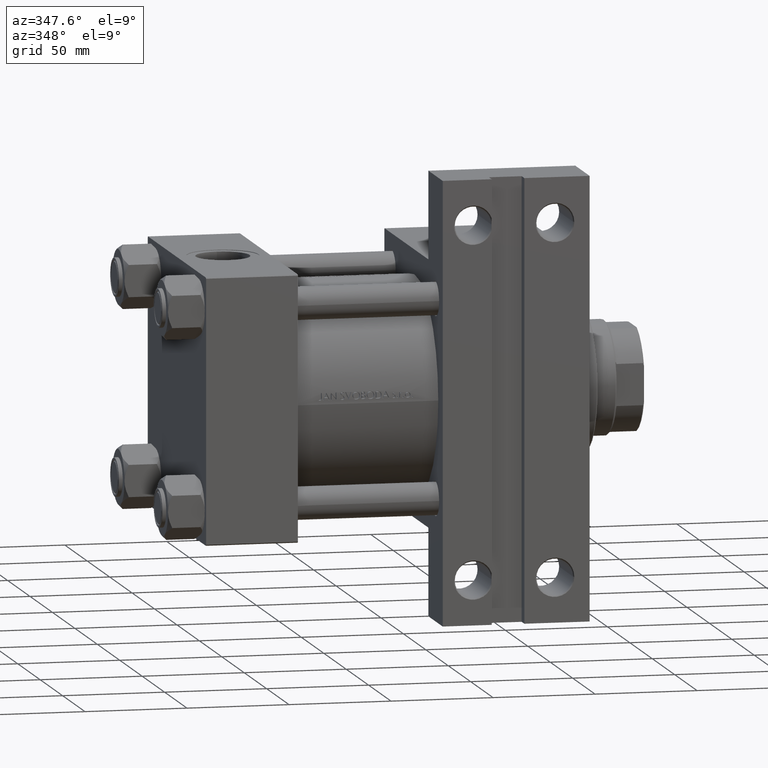
[diagram: clean part render]
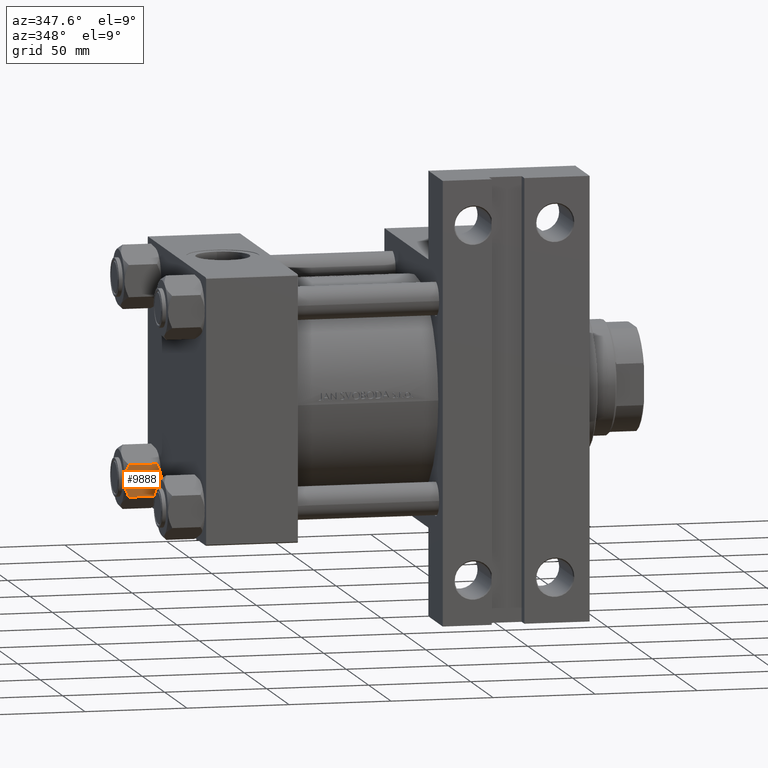
[diagram: same view with one face highlighted and labeled with its STEP entity id]
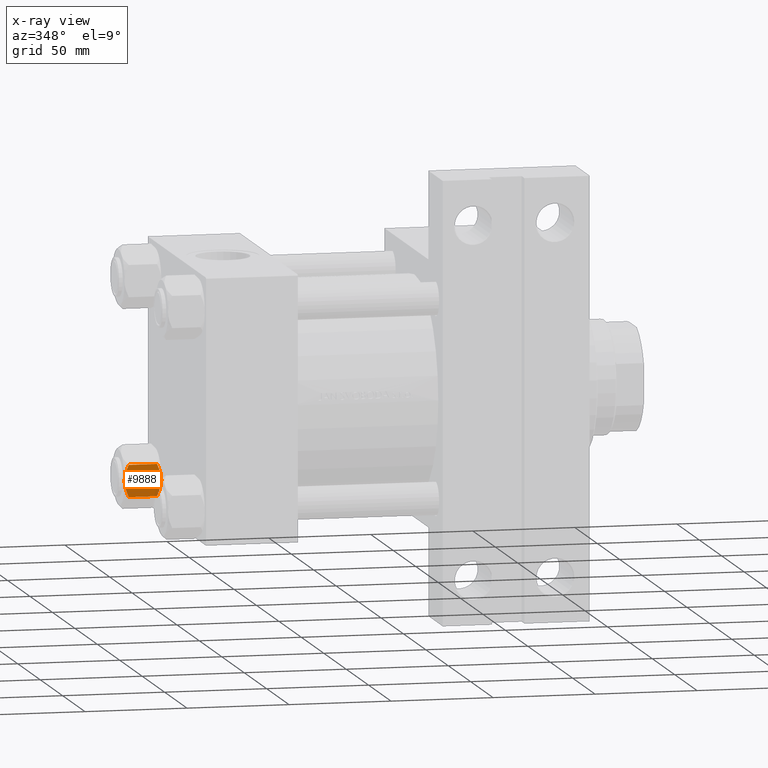
[diagram: x-ray of the same camera — body ghosted, the highlighted face saturated]
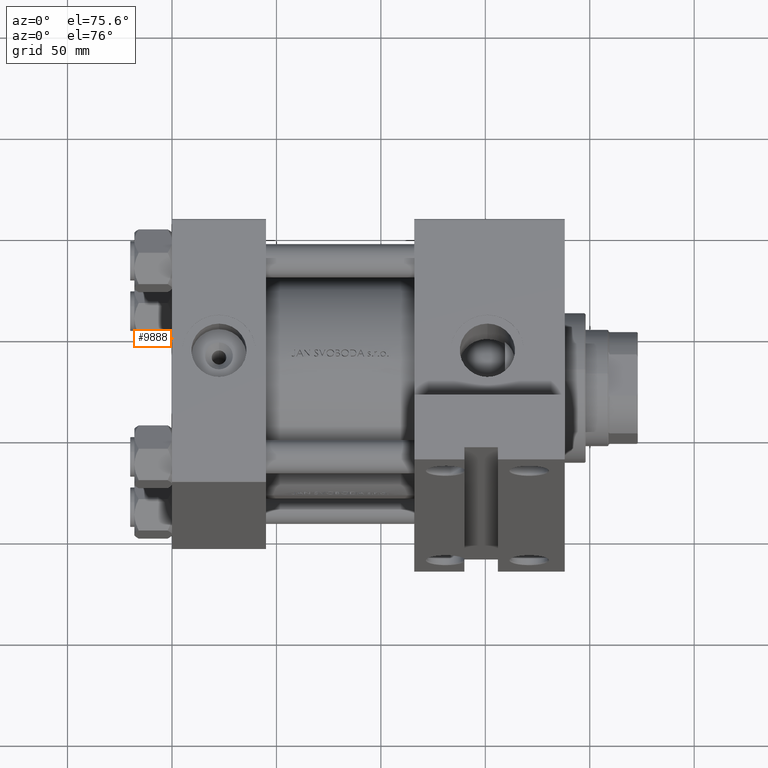
[diagram: same view with one face highlighted and labeled with its STEP entity id]
A machine part, auxiliary view. The second image highlights one B-rep face of the part: STEP entity #9888.
The next image is the same camera in x-ray: the body ghosted, the highlighted face saturated — about 5% of this face is hidden behind the body in this view.
A second angle (auxiliary view) of the same face is appended — the face is thin or edge-on in the first view.
In plain terms, the highlighted planar face has unit normal (0, 1, -0).
Its self-contained STEP definition (entity closure, byte-faithful):
#417 = CARTESIAN_POINT ( 'NONE',  ( -4.557734399832409800, -13.52731680711293905, -17.26585298258849122 ) ) ;
#431 = VERTEX_POINT ( 'NONE', #20431 ) ;
#464 = CARTESIAN_POINT ( 'NONE',  ( 1.663410456966175843, -13.52731680711293372, -0.09804949135698878826 ) ) ;
#612 = CARTESIAN_POINT ( 'NONE',  ( -7.809999999999999609, -13.52731680711293727, -1.999999999999998224 ) ) ;
#851 = FACE_OUTER_BOUND ( 'NONE', #21378, .T. ) ;
#3019 = CARTESIAN_POINT ( 'NONE',  ( -7.622943475354647447, -13.52731680711293727, -2.000000000000000000 ) ) ;
#3577 = LINE ( 'NONE', #18983, #6570 ) ;
#3952 = DIRECTION ( 'NONE',  ( 1.000000000000000000, 2.221156819432531199E-16, -0.000000000000000000 ) ) ;
#4744 = VERTEX_POINT ( 'NONE', #48546 ) ;
#4783 = ORIENTED_EDGE ( 'NONE', *, *, #12728, .F. ) ;
#5666 = CARTESIAN_POINT ( 'NONE',  ( 3.287826776903156833, -13.52731680711293194, -0.3804584453753362960 ) ) ;
#6570 = VECTOR ( 'NONE', #30086, 1000.000000000000000 ) ;
#6712 = EDGE_CURVE ( 'NONE', #24301, #46433, #40684, .T. ) ;
#7182 = VERTEX_POINT ( 'NONE', #612 ) ;
#7419 = VECTOR ( 'NONE', #32786, 1000.000000000000000 ) ;
#8318 = CARTESIAN_POINT ( 'NONE',  ( 5.184073258379408244, -13.52731680711293372, -0.9481437906500832513 ) ) ;
#8511 = CARTESIAN_POINT ( 'NONE',  ( -6.422751913021825132, -13.52731680711293905, -16.56349088907410305 ) ) ;
#9184 = CARTESIAN_POINT ( 'NONE',  ( 7.810000000000002274, -13.52731680711293372, -18.00000000000000000 ) ) ;
#9418 = CARTESIAN_POINT ( 'NONE',  ( 7.622943475354652776, -13.52731680711293372, -2.000000000000000000 ) ) ;
#9660 = B_SPLINE_CURVE_WITH_KNOTS ( 'NONE', 3,
 ( #3019, #40928, #14899, #10616, #17675, #30296, #49260, #10870 ),
 .UNSPECIFIED., .F., .F.,
 ( 4, 2, 2, 4 ),
 ( 0.01980594295952729095, 0.02179054093496183425, 0.02377513891039637756, 0.02774433486126546416 ),
 .UNSPECIFIED. ) ;
#9888 = ADVANCED_FACE ( 'NONE', ( #851 ), #31653, .F. ) ;
#10516 = CARTESIAN_POINT ( 'NONE',  ( -7.622943475354647447, -13.52731680711293727, -16.00000000000000000 ) ) ;
#10616 = CARTESIAN_POINT ( 'NONE',  ( -5.189513245496330640, -13.52731680711293905, -0.9501108431732574466 ) ) ;
#10765 = EDGE_CURVE ( 'NONE', #7182, #29683, #19616, .T. ) ;
#10809 = EDGE_CURVE ( 'NONE', #4744, #7182, #23654, .T. ) ;
#10870 = CARTESIAN_POINT ( 'NONE',  ( 3.004629197474319246E-15, -13.52731680711293727, 0.000000000000000000 ) ) ;
#11797 = CARTESIAN_POINT ( 'NONE',  ( -7.809999999999999609, -13.52731680711293727, -18.00000000000000000 ) ) ;
#12039 = AXIS2_PLACEMENT_3D ( 'NONE', #9184, #43778, #21026 ) ;
#12583 = CARTESIAN_POINT ( 'NONE',  ( 0.6693083573771232420, -13.52731680711293372, -0.01249333081107902900 ) ) ;
#12728 = EDGE_CURVE ( 'NONE', #37979, #46132, #24318, .T. ) ;
#12876 = CARTESIAN_POINT ( 'NONE',  ( 7.810000000000002274, -13.52731680711293372, -16.00000000000000000 ) ) ;
#12939 = ORIENTED_EDGE ( 'NONE', *, *, #31015, .F. ) ;
#13487 = CARTESIAN_POINT ( 'NONE',  ( 7.030203932307590442, -13.52731680711293727, -1.709001877891394017 ) ) ;
#13866 = VERTEX_POINT ( 'NONE', #15011 ) ;
#14844 = CARTESIAN_POINT ( 'NONE',  ( -7.622943475354647447, -13.52731680711293727, -2.000000000000000000 ) ) ;
#14899 = CARTESIAN_POINT ( 'NONE',  ( -6.427364677720470709, -13.52731680711293727, -1.438506937155139109 ) ) ;
#15011 = CARTESIAN_POINT ( 'NONE',  ( 3.004629197474319246E-15, -13.52731680711293727, 0.000000000000000000 ) ) ;
#15076 = CARTESIAN_POINT ( 'NONE',  ( 7.030888348548065103, -13.52731680711293194, -16.29066211644969897 ) ) ;
#15321 = CARTESIAN_POINT ( 'NONE',  ( 2.638177715023113379, -13.52731680711293549, -17.79984593233011481 ) ) ;
#15465 = EDGE_CURVE ( 'NONE', #29683, #13866, #9660, .T. ) ;
#17675 = CARTESIAN_POINT ( 'NONE',  ( -4.553769687922305742, -13.52731680711294082, -0.7327291995145158721 ) ) ;
#18983 = CARTESIAN_POINT ( 'NONE',  ( 7.810000000000002274, -13.52731680711293372, -16.00000000000000000 ) ) ;
#19616 = LINE ( 'NONE', #35015, #22563 ) ;
#19621 = CARTESIAN_POINT ( 'NONE',  ( -0.3330234424833808937, -13.52731680711293372, -18.00000000000000711 ) ) ;
#19886 = B_SPLINE_CURVE_WITH_KNOTS ( 'NONE', 3,
 ( #45898, #15076, #30471, #34504, #49933, #15321, #30721, #23150 ),
 .UNSPECIFIED., .F., .F.,
 ( 4, 2, 2, 4 ),
 ( 0.01980594295952729095, 0.02179054093496183078, 0.02377513891039637062, 0.02774433486126545376 ),
 .UNSPECIFIED. ) ;
#20431 = CARTESIAN_POINT ( 'NONE',  ( 7.810000000000002274, -13.52731680711293372, -1.999999999999998224 ) ) ;
#21026 = DIRECTION ( 'NONE',  ( -1.000000000000000000, -2.221156819432531199E-16, 0.000000000000000000 ) ) ;
#21378 = EDGE_LOOP ( 'NONE', ( #4783, #27936, #43644, #39173, #43732, #47233, #48969, #42196, #25296, #12939 ) ) ;
#22442 = EDGE_CURVE ( 'NONE', #46433, #4744, #3577, .T. ) ;
#22563 = VECTOR ( 'NONE', #3952, 1000.000000000000000 ) ;
#23150 = CARTESIAN_POINT ( 'NONE',  ( 3.004629197474319246E-15, -13.52731680711293727, -18.00000000000000000 ) ) ;
#23654 = LINE ( 'NONE', #11797, #32197 ) ;
#23659 = CARTESIAN_POINT ( 'NONE',  ( 3.004629197474319246E-15, -13.52731680711293727, -18.00000000000000000 ) ) ;
#23899 = CARTESIAN_POINT ( 'NONE',  ( -7.030203932307581560, -13.52731680711293727, -16.29099812210860065 ) ) ;
#24301 = VERTEX_POINT ( 'NONE', #48560 ) ;
#24318 = LINE ( 'NONE', #39736, #41193 ) ;
#24529 = LINE ( 'NONE', #33076, #37259 ) ;
#25296 = ORIENTED_EDGE ( 'NONE', *, *, #6712, .F. ) ;
#27433 = CARTESIAN_POINT ( 'NONE',  ( -2.644243758052987836, -13.52731680711293549, -17.75917188019760218 ) ) ;
#27484 = CARTESIAN_POINT ( 'NONE',  ( 6.422751913021828685, -13.52731680711293549, -1.436509110925896948 ) ) ;
#27647 = B_SPLINE_CURVE_WITH_KNOTS ( 'NONE', 3,
 ( #46201, #31020, #12583, #40534, #464, #35066, #5666, #35305, #8318, #27484, #13487, #42904 ),
 .UNSPECIFIED., .F., .F.,
 ( 4, 2, 2, 2, 2, 4 ),
 ( 0.02774433486126546416, 0.02873404020403550266, 0.02972374554680554115, 0.03170315623234561814, 0.03368256691788569512, 0.03566197760342577211 ),
 .UNSPECIFIED. ) ;
#27691 = CARTESIAN_POINT ( 'NONE',  ( -3.287826776903149728, -13.52731680711293727, -17.61954155462466076 ) ) ;
#27936 = ORIENTED_EDGE ( 'NONE', *, *, #28471, .T. ) ;
#28304 = DIRECTION ( 'NONE',  ( -0.000000000000000000, -0.000000000000000000, 1.000000000000000000 ) ) ;
#28471 = EDGE_CURVE ( 'NONE', #37979, #431, #24529, .T. ) ;
#29001 = CARTESIAN_POINT ( 'NONE',  ( 7.810000000000002274, -13.52731680711293372, -1.999999999999998224 ) ) ;
#29683 = VERTEX_POINT ( 'NONE', #14844 ) ;
#30086 = DIRECTION ( 'NONE',  ( -1.000000000000000000, -2.221156819432531199E-16, 0.000000000000000000 ) ) ;
#30296 = CARTESIAN_POINT ( 'NONE',  ( -2.638177715023105385, -13.52731680711294082, -0.2001540676698838062 ) ) ;
#30471 = CARTESIAN_POINT ( 'NONE',  ( 6.427364677720476926, -13.52731680711293549, -16.56149306284486755 ) ) ;
#30721 = CARTESIAN_POINT ( 'NONE',  ( 1.335584685993418619, -13.52731680711293372, -18.00000000000000355 ) ) ;
#31015 = EDGE_CURVE ( 'NONE', #46132, #24301, #19886, .T. ) ;
#31020 = CARTESIAN_POINT ( 'NONE',  ( 0.3330234424833860007, -13.52731680711293727, 1.736982230502816853E-15 ) ) ;
#31474 = CARTESIAN_POINT ( 'NONE',  ( -7.622943475354647447, -13.52731680711293727, -16.00000000000000000 ) ) ;
#31653 = PLANE ( 'NONE',  #12039 ) ;
#32197 = VECTOR ( 'NONE', #49927, 1000.000000000000000 ) ;
#32786 = DIRECTION ( 'NONE',  ( 1.000000000000000000, 2.221156819432531199E-16, -0.000000000000000000 ) ) ;
#33076 = CARTESIAN_POINT ( 'NONE',  ( 7.810000000000002274, -13.52731680711293372, -18.00000000000000000 ) ) ;
#34504 = CARTESIAN_POINT ( 'NONE',  ( 5.189513245496335969, -13.52731680711293194, -17.04988915682674033 ) ) ;
#35015 = CARTESIAN_POINT ( 'NONE',  ( 7.810000000000002274, -13.52731680711293372, -1.999999999999998224 ) ) ;
#35066 = CARTESIAN_POINT ( 'NONE',  ( 2.644243758052992277, -13.52731680711293372, -0.2408281198023969893 ) ) ;
#35305 = CARTESIAN_POINT ( 'NONE',  ( 4.557734399832416905, -13.52731680711293016, -0.7341470174115138914 ) ) ;
#35928 = DIRECTION ( 'NONE',  ( -1.000000000000000000, -2.221156819432531199E-16, 0.000000000000000000 ) ) ;
#37259 = VECTOR ( 'NONE', #28304, 1000.000000000000000 ) ;
#37838 = CARTESIAN_POINT ( 'NONE',  ( 7.622943475354652776, -13.52731680711293372, -16.00000000000000000 ) ) ;
#37979 = VERTEX_POINT ( 'NONE', #12876 ) ;
#38814 = CARTESIAN_POINT ( 'NONE',  ( -1.333889873825130579, -13.52731680711293549, -17.93843358996560866 ) ) ;
#39173 = ORIENTED_EDGE ( 'NONE', *, *, #41534, .F. ) ;
#39395 = VERTEX_POINT ( 'NONE', #9418 ) ;
#39736 = CARTESIAN_POINT ( 'NONE',  ( 7.810000000000002274, -13.52731680711293372, -16.00000000000000000 ) ) ;
#40534 = CARTESIAN_POINT ( 'NONE',  ( 1.333889873825135686, -13.52731680711293549, -0.06156641003439144999 ) ) ;
#40684 = B_SPLINE_CURVE_WITH_KNOTS ( 'NONE', 3,
 ( #23659, #19621, #43592, #38814, #42857, #27433, #27691, #417, #43110, #8511, #23899, #31474 ),
 .UNSPECIFIED., .F., .F.,
 ( 4, 2, 2, 2, 2, 4 ),
 ( 0.02774433486126545376, 0.02873404020403549225, 0.02972374554680553074, 0.03170315623234560426, 0.03368256691788568125, 0.03566197760342575823 ),
 .UNSPECIFIED. ) ;
#40928 = CARTESIAN_POINT ( 'NONE',  ( -7.030888348548060662, -13.52731680711294082, -1.709337883550297699 ) ) ;
#41193 = VECTOR ( 'NONE', #35928, 1000.000000000000000 ) ;
#41534 = EDGE_CURVE ( 'NONE', #13866, #39395, #27647, .T. ) ;
#42196 = ORIENTED_EDGE ( 'NONE', *, *, #22442, .F. ) ;
#42857 = CARTESIAN_POINT ( 'NONE',  ( -1.663410456966171180, -13.52731680711293549, -17.90195050864300796 ) ) ;
#42904 = CARTESIAN_POINT ( 'NONE',  ( 7.622943475354652776, -13.52731680711293372, -2.000000000000000000 ) ) ;
#43110 = CARTESIAN_POINT ( 'NONE',  ( -5.184073258379402027, -13.52731680711293905, -17.05185620934992130 ) ) ;
#43592 = CARTESIAN_POINT ( 'NONE',  ( -0.6693083573771178019, -13.52731680711293727, -17.98750666918892449 ) ) ;
#43644 = ORIENTED_EDGE ( 'NONE', *, *, #45988, .F. ) ;
#43732 = ORIENTED_EDGE ( 'NONE', *, *, #15465, .F. ) ;
#43778 = DIRECTION ( 'NONE',  ( -2.221156819432531199E-16, 1.000000000000000000, 0.000000000000000000 ) ) ;
#44425 = LINE ( 'NONE', #29001, #7419 ) ;
#45898 = CARTESIAN_POINT ( 'NONE',  ( 7.622943475354652776, -13.52731680711293372, -16.00000000000000000 ) ) ;
#45988 = EDGE_CURVE ( 'NONE', #39395, #431, #44425, .T. ) ;
#46132 = VERTEX_POINT ( 'NONE', #37838 ) ;
#46201 = CARTESIAN_POINT ( 'NONE',  ( 3.004629197474319246E-15, -13.52731680711293727, 0.000000000000000000 ) ) ;
#46433 = VERTEX_POINT ( 'NONE', #10516 ) ;
#47233 = ORIENTED_EDGE ( 'NONE', *, *, #10765, .F. ) ;
#48546 = CARTESIAN_POINT ( 'NONE',  ( -7.809999999999999609, -13.52731680711293727, -16.00000000000000000 ) ) ;
#48560 = CARTESIAN_POINT ( 'NONE',  ( 3.004629197474319246E-15, -13.52731680711293727, -18.00000000000000000 ) ) ;
#48969 = ORIENTED_EDGE ( 'NONE', *, *, #10809, .F. ) ;
#49260 = CARTESIAN_POINT ( 'NONE',  ( -1.335584685993413956, -13.52731680711294082, 1.666960840196463265E-15 ) ) ;
#49927 = DIRECTION ( 'NONE',  ( -0.000000000000000000, -0.000000000000000000, 1.000000000000000000 ) ) ;
#49933 = CARTESIAN_POINT ( 'NONE',  ( 4.553769687922309295, -13.52731680711293194, -17.26727080048548046 ) ) ;